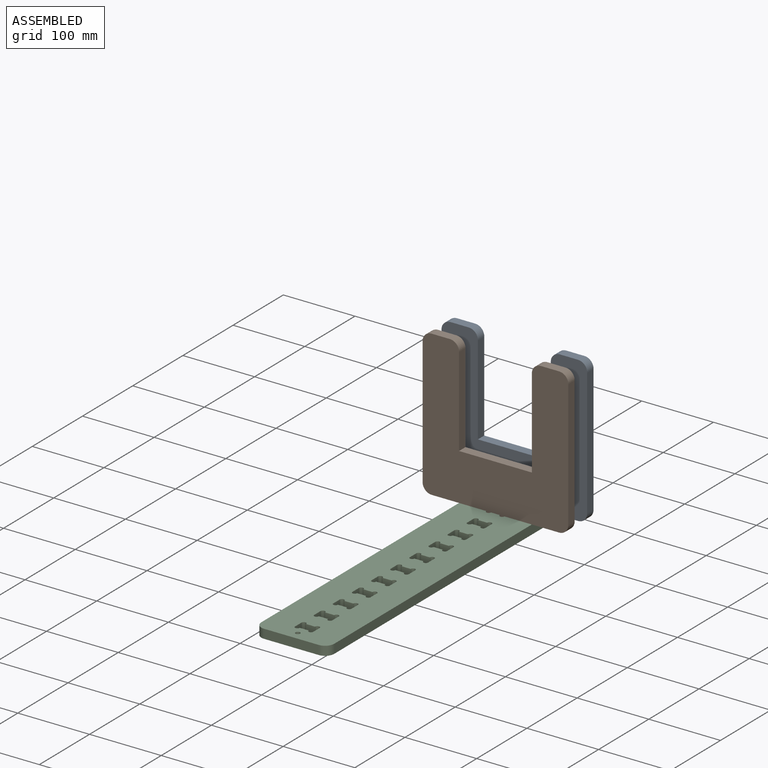
[diagram: assembled view]
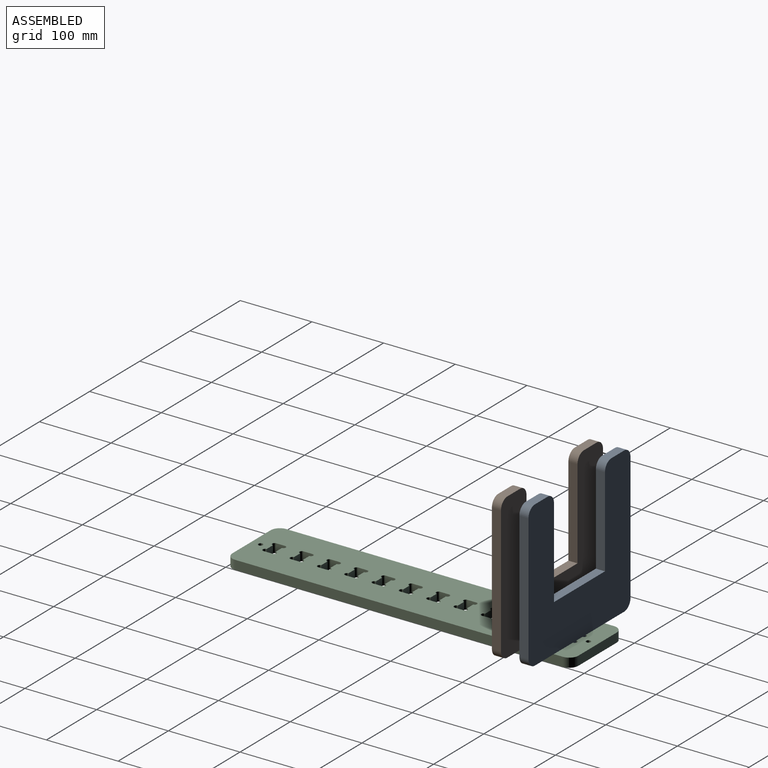
[diagram: assembled view, second angle]
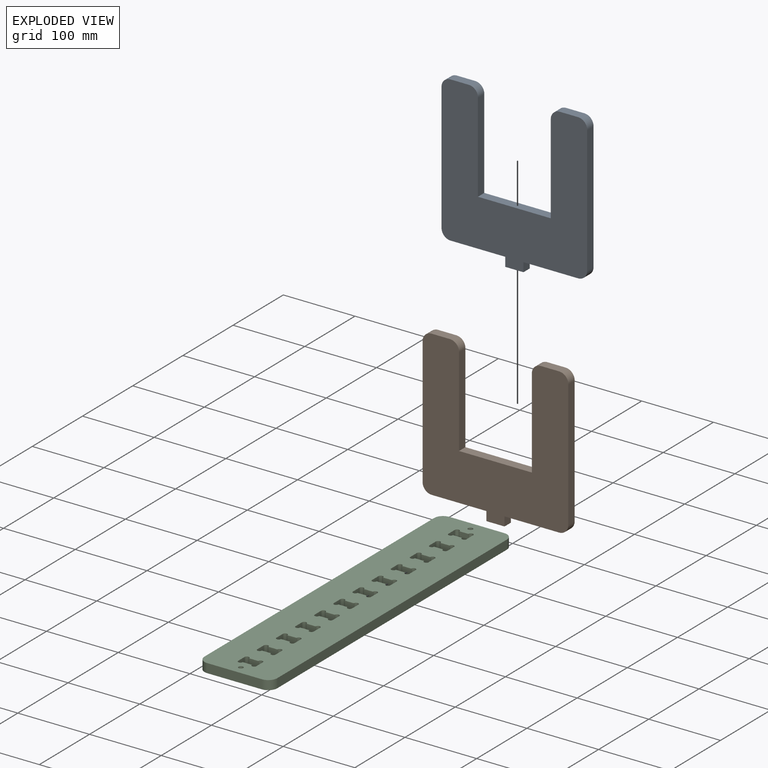
[diagram: exploded view]
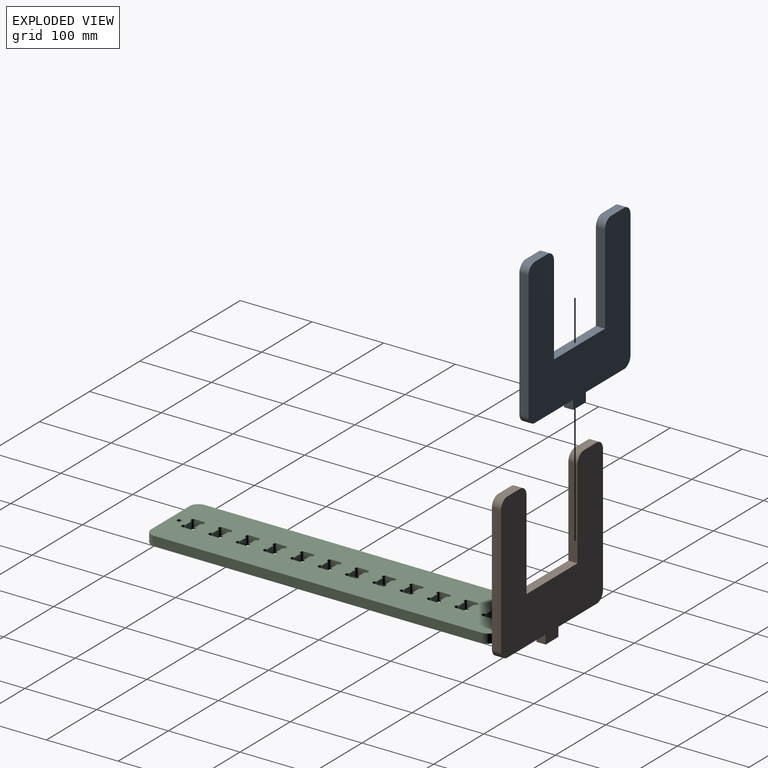
[diagram: exploded view, second angle]
ASSEMBLY  parts=3 mates=2
PART A: 20 faces, bbox 203.2x12.7x215.9 mm
  f0: plane 12.7x12.7mm, normal (-1,0,0), area 161.3mm2, adj f1,f11,f12,f13
  f1: plane 76.2x12.7mm, normal (0,0,1), area 967.7mm2, adj f0,f12,f13,f14
  f2: plane 177.8x12.7mm, normal (-1,0,0), area 2258.1mm2, adj f12,f13,f14,f15
  f3: plane 25.4x12.7mm, normal (0,0,-1), area 322.6mm2, adj f12,f13,f15,f18
  f4: plane 125.01x12.7mm, normal (1,0,0), area 1587.6mm2, adj f5,f12,f13,f18
  f5: plane 101.6x12.7mm, normal (0,0,-1), area 1290.3mm2, adj f4,f6,f12,f13
  f6: plane 125.01x12.7mm, normal (-1,0,0), area 1587.6mm2, adj f5,f12,f13,f19
  f7: plane 25.4x12.7mm, normal (0,0,-1), area 322.6mm2, adj f12,f13,f16,f19
  f8: plane 177.8x12.7mm, normal (1,0,0), area 2258.1mm2, adj f12,f13,f16,f17
  f9: plane 76.2x12.7mm, normal (0,0,1), area 967.7mm2, adj f10,f12,f13,f17
  f10: plane 12.7x12.7mm, normal (1,0,0), area 161.3mm2, adj f9,f11,f12,f13
  f11: plane 25.4x12.7mm, normal (0,0,1), area 322.6mm2, adj f0,f10,f12,f13
  f12: plane 215.9x203.2mm, normal (0,-1,0), area 27413.6mm2, adj f0,f1,f2,f3,f4,f5,f6,f7
  f13: plane 215.9x203.2mm, normal (0,1,0), area 27413.6mm2, adj f0,f1,f2,f3,f4,f5,f6,f7
  f14: cylinder r=12.7mm len=12.7mm, axis (0,-1,0), area 253.4mm2, adj f1,f2,f12,f13
  f15: cylinder r=12.7mm len=12.7mm, axis (0,1,0), area 253.4mm2, adj f2,f3,f12,f13
  f16: cylinder r=12.7mm len=12.7mm, axis (0,-1,0), area 253.4mm2, adj f7,f8,f12,f13
  f17: cylinder r=12.7mm len=12.7mm, axis (0,1,0), area 253.4mm2, adj f8,f9,f12,f13
  f18: cylinder r=12.7mm len=12.7mm, axis (0,-1,0), area 253.4mm2, adj f3,f4,f12,f13
  f19: cylinder r=12.7mm len=12.7mm, axis (0,-1,0), area 253.4mm2, adj f6,f7,f12,f13
PART B: same geometry as A
PART C: 109 faces, bbox 101.6x482.6x12.7 mm
  f0: cylinder r=3.17mm len=12.7mm, axis (0,0,-1), area 126.7mm2, adj f1,f102,f103,f104
  f1: plane 12.7x12.7mm, normal (-1,0,0), area 161.3mm2, adj f0,f2,f103,f104
  f2: cylinder r=3.17mm len=12.7mm, axis (0,0,-1), area 126.7mm2, adj f1,f3,f103,f104
  f3: plane 12.7x12.7mm, normal (0,1,0), area 161.3mm2, adj f2,f4,f103,f104
  f4: cylinder r=3.17mm len=12.7mm, axis (0,0,-1), area 126.7mm2, adj f3,f5,f103,f104
  f5: plane 12.7x12.7mm, normal (1,0,0), area 161.3mm2, adj f4,f6,f103,f104
  f6: cylinder r=3.17mm len=12.7mm, axis (0,0,-1), area 126.7mm2, adj f5,f102,f103,f104
  f7: cylinder r=3.17mm len=12.7mm, axis (0,0,-1), area 126.7mm2, adj f8,f88,f103,f104
  f8: plane 12.7x12.7mm, normal (-1,0,0), area 161.3mm2, adj f7,f9,f103,f104
  f9: cylinder r=3.17mm len=12.7mm, axis (0,0,-1), area 126.7mm2, adj f8,f10,f103,f104
  f10: plane 12.7x12.7mm, normal (0,1,0), area 161.3mm2, adj f9,f11,f103,f104
  f11: cylinder r=3.17mm len=12.7mm, axis (0,0,-1), area 126.7mm2, adj f10,f12,f103,f104
  f12: plane 12.7x12.7mm, normal (1,0,0), area 161.3mm2, adj f11,f13,f103,f104
  f13: cylinder r=3.17mm len=12.7mm, axis (0,0,-1), area 126.7mm2, adj f12,f88,f103,f104
  f14: cylinder r=3.17mm len=12.7mm, axis (0,0,-1), area 126.7mm2, adj f15,f89,f103,f104
  f15: plane 12.7x12.7mm, normal (-1,0,0), area 161.3mm2, adj f14,f16,f103,f104
  f16: cylinder r=3.17mm len=12.7mm, axis (0,0,-1), area 126.7mm2, adj f15,f17,f103,f104
  f17: plane 12.7x12.7mm, normal (0,1,0), area 161.3mm2, adj f16,f18,f103,f104
  f18: cylinder r=3.17mm len=12.7mm, axis (0,0,-1), area 126.7mm2, adj f17,f19,f103,f104
  f19: plane 12.7x12.7mm, normal (1,0,0), area 161.3mm2, adj f18,f20,f103,f104
  f20: cylinder r=3.17mm len=12.7mm, axis (0,0,-1), area 126.7mm2, adj f19,f89,f103,f104
  f21: cylinder r=3.17mm len=12.7mm, axis (0,0,-1), area 126.7mm2, adj f22,f90,f103,f104
  f22: plane 12.7x12.7mm, normal (-1,0,0), area 161.3mm2, adj f21,f23,f103,f104
  f23: cylinder r=3.17mm len=12.7mm, axis (0,0,-1), area 126.7mm2, adj f22,f24,f103,f104
  f24: plane 12.7x12.7mm, normal (0,1,0), area 161.3mm2, adj f23,f25,f103,f104
  f25: cylinder r=3.17mm len=12.7mm, axis (0,0,-1), area 126.7mm2, adj f24,f26,f103,f104
  f26: plane 12.7x12.7mm, normal (1,0,0), area 161.3mm2, adj f25,f27,f103,f104
  f27: cylinder r=3.17mm len=12.7mm, axis (0,0,-1), area 126.7mm2, adj f26,f90,f103,f104
  f28: cylinder r=3.17mm len=12.7mm, axis (0,0,-1), area 126.7mm2, adj f29,f91,f103,f104
  f29: plane 12.7x12.7mm, normal (-1,0,0), area 161.3mm2, adj f28,f30,f103,f104
  f30: cylinder r=3.17mm len=12.7mm, axis (0,0,-1), area 126.7mm2, adj f29,f31,f103,f104
  f31: plane 12.7x12.7mm, normal (0,1,0), area 161.3mm2, adj f30,f32,f103,f104
  f32: cylinder r=3.17mm len=12.7mm, axis (0,0,-1), area 126.7mm2, adj f31,f33,f103,f104
  f33: plane 12.7x12.7mm, normal (1,0,0), area 161.3mm2, adj f32,f34,f103,f104
  f34: cylinder r=3.17mm len=12.7mm, axis (0,0,-1), area 126.7mm2, adj f33,f91,f103,f104
  f35: cylinder r=3.17mm len=12.7mm, axis (0,0,-1), area 126.7mm2, adj f36,f92,f103,f104
  f36: plane 12.7x12.7mm, normal (-1,0,0), area 161.3mm2, adj f35,f37,f103,f104
  f37: cylinder r=3.17mm len=12.7mm, axis (0,0,-1), area 126.7mm2, adj f36,f38,f103,f104
  f38: plane 12.7x12.7mm, normal (0,1,0), area 161.3mm2, adj f37,f39,f103,f104
  f39: cylinder r=3.17mm len=12.7mm, axis (0,0,-1), area 126.7mm2, adj f38,f40,f103,f104
  f40: plane 12.7x12.7mm, normal (1,0,0), area 161.3mm2, adj f39,f41,f103,f104
  f41: cylinder r=3.17mm len=12.7mm, axis (0,0,-1), area 126.7mm2, adj f40,f92,f103,f104
  f42: cylinder r=3.17mm len=12.7mm, axis (0,0,-1), area 126.7mm2, adj f43,f93,f103,f104
  f43: plane 12.7x12.7mm, normal (-1,0,0), area 161.3mm2, adj f42,f44,f103,f104
  f44: cylinder r=3.17mm len=12.7mm, axis (0,0,-1), area 126.7mm2, adj f43,f45,f103,f104
  f45: plane 12.7x12.7mm, normal (0,1,0), area 161.3mm2, adj f44,f46,f103,f104
  f46: cylinder r=3.17mm len=12.7mm, axis (0,0,-1), area 126.7mm2, adj f45,f47,f103,f104
  f47: plane 12.7x12.7mm, normal (1,0,0), area 161.3mm2, adj f46,f48,f103,f104
  f48: cylinder r=3.17mm len=12.7mm, axis (0,0,-1), area 126.7mm2, adj f47,f93,f103,f104
  f49: cylinder r=3.17mm len=12.7mm, axis (0,0,-1), area 126.7mm2, adj f50,f94,f103,f104
  f50: plane 12.7x12.7mm, normal (-1,0,0), area 161.3mm2, adj f49,f51,f103,f104
  f51: cylinder r=3.17mm len=12.7mm, axis (0,0,-1), area 126.7mm2, adj f50,f52,f103,f104
  f52: plane 12.7x12.7mm, normal (0,1,0), area 161.3mm2, adj f51,f53,f103,f104
  f53: cylinder r=3.17mm len=12.7mm, axis (0,0,-1), area 126.7mm2, adj f52,f54,f103,f104
  f54: plane 12.7x12.7mm, normal (1,0,0), area 161.3mm2, adj f53,f55,f103,f104
  f55: cylinder r=3.17mm len=12.7mm, axis (0,0,-1), area 126.7mm2, adj f54,f94,f103,f104
  f56: cylinder r=3.17mm len=12.7mm, axis (0,0,-1), area 126.7mm2, adj f57,f95,f103,f104
  f57: plane 12.7x12.7mm, normal (-1,0,0), area 161.3mm2, adj f56,f58,f103,f104
  f58: cylinder r=3.17mm len=12.7mm, axis (0,0,-1), area 126.7mm2, adj f57,f59,f103,f104
  f59: plane 12.7x12.7mm, normal (0,1,0), area 161.3mm2, adj f58,f60,f103,f104
  f60: cylinder r=3.17mm len=12.7mm, axis (0,0,-1), area 126.7mm2, adj f59,f61,f103,f104
  f61: plane 12.7x12.7mm, normal (1,0,0), area 161.3mm2, adj f60,f62,f103,f104
  f62: cylinder r=3.17mm len=12.7mm, axis (0,0,-1), area 126.7mm2, adj f61,f95,f103,f104
  f63: cylinder r=3.17mm len=12.7mm, axis (0,0,-1), area 126.7mm2, adj f64,f96,f103,f104
  f64: plane 12.7x12.7mm, normal (-1,0,0), area 161.3mm2, adj f63,f65,f103,f104
  f65: cylinder r=3.17mm len=12.7mm, axis (0,0,-1), area 126.7mm2, adj f64,f66,f103,f104
  f66: plane 12.7x12.7mm, normal (0,1,0), area 161.3mm2, adj f65,f67,f103,f104
  f67: cylinder r=3.17mm len=12.7mm, axis (0,0,-1), area 126.7mm2, adj f66,f68,f103,f104
  f68: plane 12.7x12.7mm, normal (1,0,0), area 161.3mm2, adj f67,f69,f103,f104
  f69: cylinder r=3.17mm len=12.7mm, axis (0,0,-1), area 126.7mm2, adj f68,f96,f103,f104
  f70: cylinder r=3.17mm len=12.7mm, axis (0,0,-1), area 126.7mm2, adj f71,f97,f103,f104
  f71: plane 12.7x12.7mm, normal (-1,0,0), area 161.3mm2, adj f70,f72,f103,f104
  f72: plane 12.7x0.22mm, normal (0,1,0), area 2.7mm2, adj f71,f73,f103,f104
  f73: cylinder r=3.17mm len=12.7mm, axis (0,0,-1), area 126.7mm2, adj f72,f74,f103,f104
  f74: plane 12.7x12.48mm, normal (0,1,0), area 158.5mm2, adj f73,f75,f103,f104
  f75: cylinder r=3.17mm len=12.7mm, axis (0,0,-1), area 126.7mm2, adj f74,f76,f103,f104
  f76: plane 12.7x12.7mm, normal (1,0,0), area 161.3mm2, adj f75,f77,f103,f104
  f77: cylinder r=3.17mm len=12.7mm, axis (0,0,-1), area 126.7mm2, adj f76,f97,f103,f104
  f78: plane 12.7x10.32mm, normal (-1,0,0), area 131mm2, adj f79,f98,f103,f104
  f79: cylinder r=3.39mm len=12.7mm, axis (0,0,-1), area 150.8mm2, adj f78,f80,f103,f104
  f80: plane 12.7x12.48mm, normal (0,1,0), area 158.5mm2, adj f79,f81,f103,f104
  f81: cylinder r=3.17mm len=12.7mm, axis (0,0,-1), area 126.7mm2, adj f80,f82,f103,f104
  f82: plane 12.7x12.7mm, normal (1,0,0), area 161.3mm2, adj f81,f83,f103,f104
  f83: cylinder r=3.17mm len=12.7mm, axis (0,0,-1), area 126.7mm2, adj f82,f84,f103,f104
  f84: plane 12.7x12.48mm, normal (0,-1,0), area 158.5mm2, adj f83,f98,f103,f104
  f85: plane 457.2x12.7mm, normal (1,0,0), area 5806.4mm2, adj f103,f104,f105,f108
  f86: plane 76.2x12.7mm, normal (0,1,0), area 967.7mm2, adj f103,f104,f105,f106
  f87: plane 457.2x12.7mm, normal (-1,0,0), area 5806.4mm2, adj f103,f104,f106,f107
  f88: plane 12.7x12.7mm, normal (0,-1,0), area 161.3mm2, adj f7,f13,f103,f104
  f89: plane 12.7x12.7mm, normal (0,-1,0), area 161.3mm2, adj f14,f20,f103,f104
  f90: plane 12.7x12.7mm, normal (0,-1,0), area 161.3mm2, adj f21,f27,f103,f104
  f91: plane 12.7x12.7mm, normal (0,-1,0), area 161.3mm2, adj f28,f34,f103,f104
  f92: plane 12.7x12.7mm, normal (0,-1,0), area 161.3mm2, adj f35,f41,f103,f104
  f93: plane 12.7x12.7mm, normal (0,-1,0), area 161.3mm2, adj f42,f48,f103,f104
  f94: plane 12.7x12.7mm, normal (0,-1,0), area 161.3mm2, adj f49,f55,f103,f104
  f95: plane 12.7x12.7mm, normal (0,-1,0), area 161.3mm2, adj f56,f62,f103,f104
  f96: plane 12.7x12.7mm, normal (0,-1,0), area 161.3mm2, adj f63,f69,f103,f104
  f97: plane 12.7x12.7mm, normal (0,-1,0), area 161.3mm2, adj f70,f77,f103,f104
  f98: cylinder r=3.39mm len=12.7mm, axis (0,0,-1), area 150.8mm2, adj f78,f84,f103,f104
  f99: cylinder r=3.17mm len=12.7mm, axis (0,0,-1), area 253.4mm2, adj f103,f104
  f100: cylinder r=3.17mm len=12.7mm, axis (0,0,-1), area 253.4mm2, adj f103,f104
  f101: plane 76.2x12.7mm, normal (0,-1,0), area 967.7mm2, adj f103,f104,f107,f108
  f102: plane 12.7x12.7mm, normal (0,-1,0), area 161.3mm2, adj f0,f6,f103,f104
  f103: plane 482.6x101.6mm, normal (0,0,1), area 44194.5mm2, adj f0,f1,f2,f3,f4,f5,f6,f7
  f104: plane 482.6x101.6mm, normal (0,0,-1), area 44194.5mm2, adj f0,f1,f2,f3,f4,f5,f6,f7
  f105: cylinder r=12.7mm len=12.7mm, axis (0,0,1), area 253.4mm2, adj f85,f86,f103,f104
  f106: cylinder r=12.7mm len=12.7mm, axis (0,0,-1), area 253.4mm2, adj f86,f87,f103,f104
  f107: cylinder r=12.7mm len=12.7mm, axis (0,0,1), area 253.4mm2, adj f87,f101,f103,f104
  f108: cylinder r=12.7mm len=12.7mm, axis (0,0,-1), area 253.4mm2, adj f85,f101,f103,f104
PLACE A rot(axis=(0,-1,0),180deg) t=(-36.32,168.02,111.24)mm
PLACE B rot(axis=(1,0,0),180deg) t=(-36,117.22,111.24)mm
PLACE C t=(-36,-47.88,-3.06)mm
MATE fastened B.f11 <-> C.f104  axis (0,0,-1) through (-48.7,123.57,-3.06)mm
MATE fastened A.f11 <-> C.f104  axis (0,0,-1) through (-36.32,168.02,-3.06)mm
